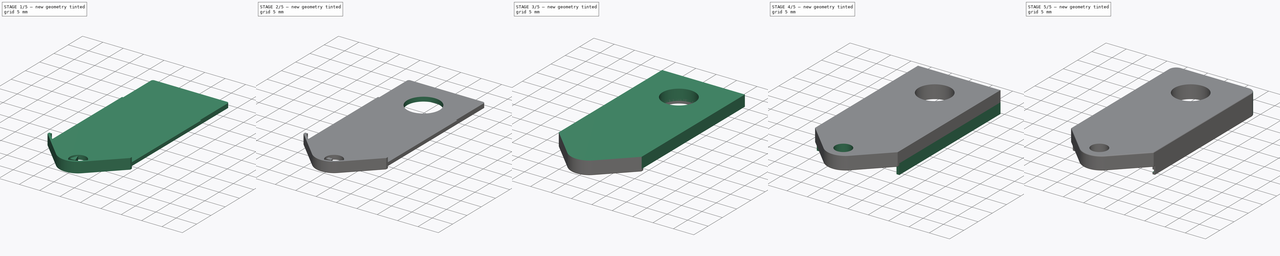
[diagram: build sequence overview — one tinted view per stage of 5, left to right]
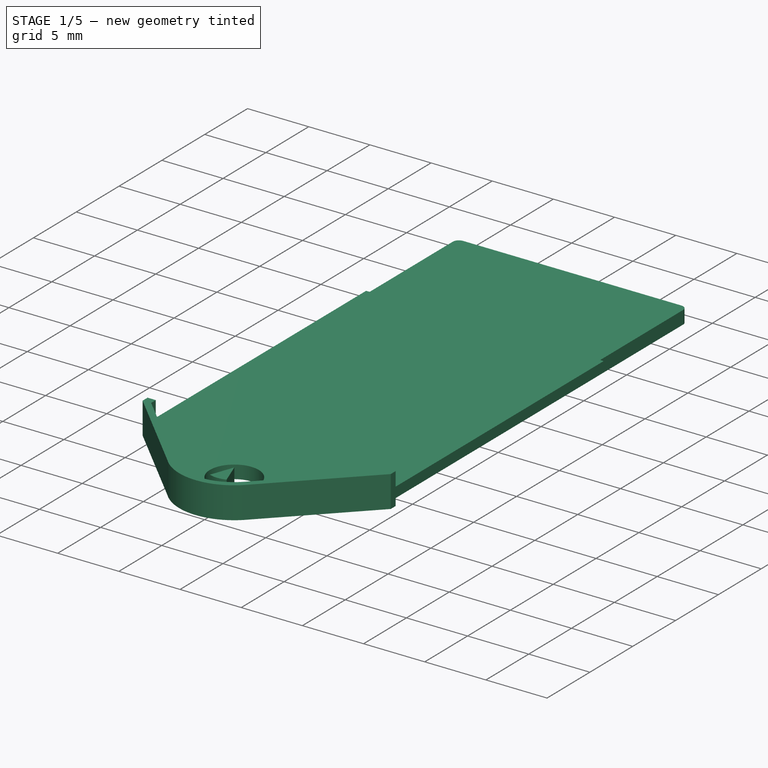
[diagram: stage 1 of 5 — iso view after this stage's code; geometry added in this stage tinted green]
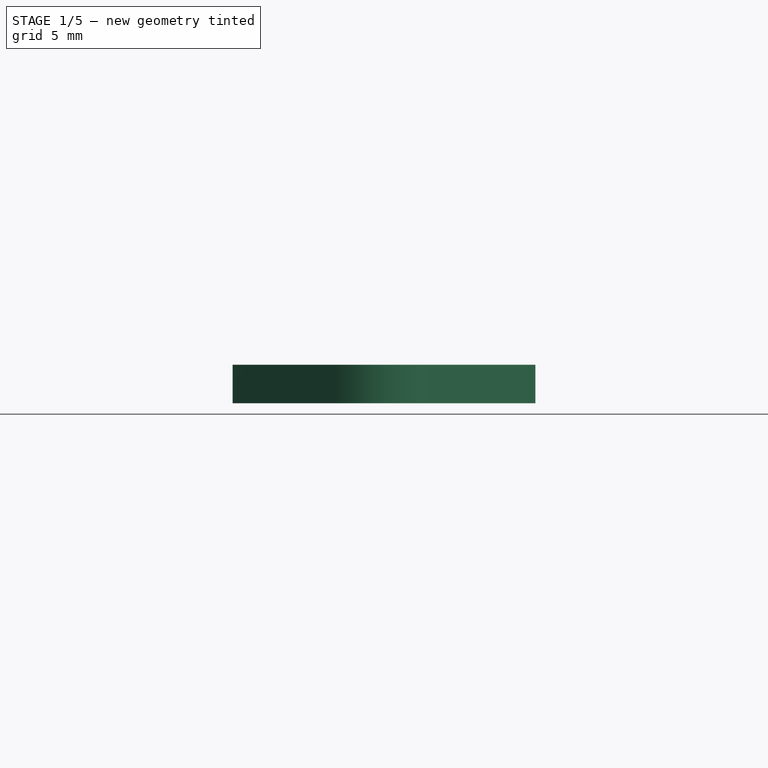
[diagram: stage 1 of 5 — front view after this stage's code; geometry added in this stage tinted green]
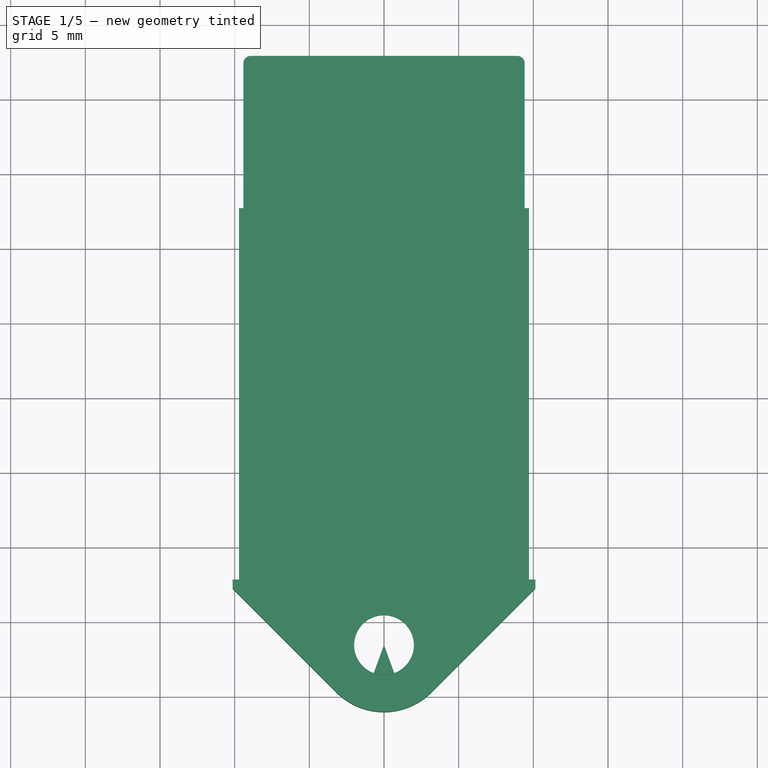
[diagram: stage 1 of 5 — top view after this stage's code; geometry added in this stage tinted green]
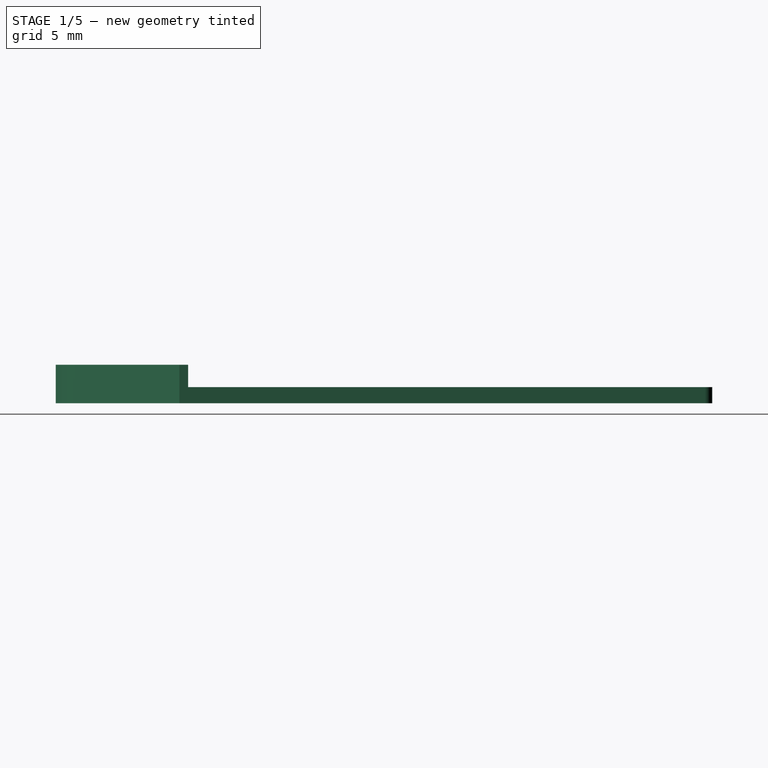
[diagram: stage 1 of 5 — right view after this stage's code; geometry added in this stage tinted green]
FCSTD DOCUMENT  (FreeCAD 0.19R24276 (Git))
Label: nfc_case
License: All rights reserved
LicenseURL: http://en.wikipedia.org/wiki/All_rights_reserved
objects: Sketcher::SketchObject×15, Part::Feature×14, App::Part×14, PartDesign::Pocket×10, PartDesign::Pad×5, PartDesign::Fillet×3, PartDesign::Body×2
note: 67 computed .brp shape members not serialized (recipe doc carries the construction recipe); baked Part::Feature solids carry a one-line shape summary decoded from their .brp

FEATURE [Sketcher::SketchObject] Sketch  label="bottom_base_sketch"
  FullyConstrained = true
  MapMode = 5
  Support = -> [XY_Plane]
  sketch-geometry (13):
    g0: LineSegment StartX=9.42 StartY=17.43 StartZ=0 EndX=9.42 EndY=-17.17 EndZ=0
    g1: LineSegment StartX=-9.42 StartY=-17.17 StartZ=0 EndX=-9.42 EndY=17.43 EndZ=0
    g2: LineSegment StartX=-9.42 StartY=-17.17 StartZ=0 EndX=-10.14 EndY=-17.17 EndZ=0
    g3: LineSegment StartX=-10.14 StartY=-17.17 StartZ=0 EndX=-10.14 EndY=-17.75 EndZ=0
    g4: LineSegment StartX=-10.14 StartY=-17.75 StartZ=0 EndX=-3.32 EndY=-24.57 EndZ=0
    g5: LineSegment StartX=3.32 StartY=-24.57 StartZ=0 EndX=10.14 EndY=-17.75 EndZ=0
    g6: LineSegment StartX=10.14 StartY=-17.75 StartZ=0 EndX=10.14 EndY=-17.17 EndZ=0
    g7: LineSegment StartX=10.14 StartY=-17.17 StartZ=0 EndX=9.42 EndY=-17.17 EndZ=0
    g8: LineSegment StartX=-8.92 StartY=17.93 StartZ=0 EndX=8.92 EndY=17.93 EndZ=0
    g9: ArcOfCircle CenterX=-8.92 CenterY=17.43 CenterZ=0 NormalX=0 NormalY=0 NormalZ=1 AngleXU=0 Radius=0.5 StartAngle=1.5708 EndAngle=3.14159
    g10: ArcOfCircle CenterX=8.92 CenterY=17.43 CenterZ=0 NormalX=0 NormalY=0 NormalZ=1 AngleXU=0 Radius=0.5 StartAngle=0 EndAngle=1.5708
    g11: Circle CenterX=0 CenterY=-21.525 CenterZ=0 NormalX=0 NormalY=0 NormalZ=1 AngleXU=0 Radius=2
    g12: ArcOfCircle CenterX=0 CenterY=-21.525 CenterZ=0 NormalX=0 NormalY=0 NormalZ=1 AngleXU=0 Radius=4.50493 StartAngle=3.88381 EndAngle=5.54097
  constraints (42):
    c: Vertical(g0)
    c: Vertical(g1)
    c: Coincident(g1,g2)
    c: Horizontal(g2)
    c: Coincident(g2,g3)
    c: Vertical(g3)
    c: Coincident(g3,g4)
    c: Coincident(g5,g6)
    c: Vertical(g6)
    c: Coincident(g6,g7)
    c: Coincident(g7,g0)
    c: Horizontal(g7)
    c: Horizontal(g8)
    c: Coincident(g9,g1)
    c: Coincident(g10,g8)
    c: Angle(g4,g3) = 2.35619
    c: Angle(g6,g5) = 2.35619
    c: Coincident(g8,g9)
    c: Distance(g7) = 0.72
    c: Distance(g2) = 0.72
    c: Horizontal(g4,g5)
    c: Coincident(g10,g0)
    c: Horizontal(g10,g0)
    c: Vertical(g10,g8)
    c: Radius(g10) = 0.5
    c: Radius(g9) = 0.5
    c: Vertical(g8,g9)
    c: Horizontal(g9,g1)
    c: Radius(g11) = 2
    c: Distance(g6) = 0.58
    c: Distance(g3) = 0.58
    c: DistanceX(g1,g0) = 18.84
    c: DistanceY(g0,g8) = 35.1
    c: Equal(g0,g1)
    c: DistanceY(g-1,g8) = 17.93
    c: DistanceY(g5,g-1) = 24.57
    c: PointOnObject(g12,g-2)
    c: Coincident(g12,g5)
    c: Coincident(g12,g4)
    c: DistanceY(g11,g-1) = 21.525
    c: DistanceY(g12,g-1) = 21.525
    c: Vertical(g11,g-1)
FEATURE [PartDesign::Pad] Pad  label="bottom_base"
  Direction = (1,1,1)
  Length = 1.98
  Length2 = 0.6
  Profile = -> Sketch
  Type = 4
FEATURE [Sketcher::SketchObject] Sketch020
  FullyConstrained = true
  MapMode = 5
  Placement = pos=(0,-17.15,0) rot=(1,0,0;1.5708rad)
  Support = -> [Pocket009]
  sketch-geometry (8):
    g0: LineSegment StartX=-9.45 StartY=-1.5 StartZ=0 EndX=-9.8 EndY=-1.5 EndZ=0
    g1: LineSegment StartX=-9.8 StartY=-1.5 StartZ=0 EndX=-9.8 EndY=-2.1 EndZ=0
    g2: LineSegment StartX=-9.8 StartY=-2.1 StartZ=0 EndX=-9.45 EndY=-2.1 EndZ=0
    g3: LineSegment StartX=-9.45 StartY=-2.1 StartZ=0 EndX=-9.45 EndY=-1.5 EndZ=0
    g4: LineSegment StartX=9.8 StartY=-1.5 StartZ=0 EndX=9.45 EndY=-1.5 EndZ=0
    g5: LineSegment StartX=9.45 StartY=-1.5 StartZ=0 EndX=9.45 EndY=-2.1 EndZ=0
    g6: LineSegment StartX=9.45 StartY=-2.1 StartZ=0 EndX=9.8 EndY=-2.1 EndZ=0
    g7: LineSegment StartX=9.8 StartY=-2.1 StartZ=0 EndX=9.8 EndY=-1.5 EndZ=0
  constraints (24):
    c: Coincident(g0,g1)
    c: Coincident(g1,g2)
    c: Coincident(g2,g3)
    c: Coincident(g3,g0)
    c: Horizontal(g0)
    c: Horizontal(g2)
    c: Vertical(g1)
    c: Vertical(g3)
    c: Distance(g2) = 0.35
    c: Distance(g3) = 0.6
    c: DistanceX(g0,g-1) = 9.45
    c: DistanceY(g0,g-1) = 1.5
    c: Coincident(g4,g5)
    c: Coincident(g5,g6)
    c: Coincident(g6,g7)
    c: Coincident(g7,g4)
    c: Horizontal(g4)
    c: Horizontal(g6)
    c: Vertical(g5)
    c: Vertical(g7)
    c: Equal(g2,g6) = 0.35
    c: Equal(g3,g7) = 0.3
    c: Horizontal(g5,g2)
    c: DistanceX(g-1,g4) = 9.45
FEATURE [Sketcher::SketchObject] Sketch021
  FullyConstrained = true
  MapMode = 5
  Placement = pos=(0,0,1.98) rot=(0,0,1;0rad)
  Support = -> [Pad]
  sketch-geometry (8):
    g0: LineSegment StartX=-9.47 StartY=17.3922 StartZ=0 EndX=-9.47 EndY=-17.7078 EndZ=0
    g1: LineSegment StartX=-9.47 StartY=-17.7078 StartZ=0 EndX=-2.72 EndY=-24.4578 EndZ=0
    g2: LineSegment StartX=2.72 StartY=-24.4578 StartZ=0 EndX=9.47 EndY=-17.7078 EndZ=0
    g3: LineSegment StartX=9.47 StartY=-17.7078 StartZ=0 EndX=9.47 EndY=17.3922 EndZ=0
    g4: LineSegment StartX=8.91215 StartY=17.95 StartZ=0 EndX=-8.91215 EndY=17.95 EndZ=0
    g5: ArcOfCircle CenterX=-8.91215 CenterY=17.3922 CenterZ=0 NormalX=0 NormalY=0 NormalZ=1 AngleXU=0 Radius=0.557848 StartAngle=1.5708 EndAngle=3.14159
    g6: ArcOfCircle CenterX=8.91215 CenterY=17.3922 CenterZ=0 NormalX=0 NormalY=0 NormalZ=1 AngleXU=0 Radius=0.557848 StartAngle=-9e-16 EndAngle=1.5708
    g7: ArcOfCircle CenterX=0 CenterY=-21.525 CenterZ=0 NormalX=0 NormalY=0 NormalZ=1 AngleXU=0 Radius=4 StartAngle=3.96463 EndAngle=5.46015
  constraints (27):
    c: Vertical(g0)
    c: Coincident(g1,g0)
    c: Coincident(g3,g2)
    c: Vertical(g3)
    c: Horizontal(g4)
    c: Coincident(g5,g4)
    c: Coincident(g5,g0)
    c: Coincident(g6,g3)
    c: Coincident(g6,g4)
    c: PointOnObject(g7,g-2)
    c: Coincident(g7,g2)
    c: Coincident(g7,g1)
    c: Horizontal(g2,g1)
    c: Angle(g3,g2) = 2.35619
    c: DistanceX(g0,g3) = 18.94
    c: Horizontal(g0,g5)
    c: Horizontal(g5,g6)
    c: Horizontal(g6,g3)
    c: Vertical(g4,g6)
    c: Vertical(g5,g4)
    c: Horizontal(g2,g0)
    c: DistanceY(g7,g-1) = 21.525
    c: Distance(g0) = 35.1
    c: DistanceY(g-1,g4) = 17.95
    c: DistanceX(g0,g-1) = 9.47
    c: Radius(g7) = 4
    c: DistanceX(g0,g1) = 6.75
FEATURE [PartDesign::Pocket] Pocket  label="pcb_space"
  BaseFeature = -> Pad
  Length = 1.5
  Length2 = 100
  Profile = -> Sketch021
  Type = 0
FEATURE [Sketcher::SketchObject] Sketch022
  FullyConstrained = true
  MapMode = 5
  Placement = pos=(0,-17.17,0) rot=(0,0.707107,0.707107;3.14159rad)
  Support = -> [Pocket]
  sketch-geometry (8):
    g0: LineSegment StartX=-9.41 StartY=0.48 StartZ=0 EndX=-9.71 EndY=0.48 EndZ=0
    g1: LineSegment StartX=-9.71 StartY=0.48 StartZ=0 EndX=-9.71 EndY=-0.02 EndZ=0
    g2: LineSegment StartX=-9.71 StartY=-0.02 StartZ=0 EndX=-9.41 EndY=-0.02 EndZ=0
    g3: LineSegment StartX=-9.41 StartY=-0.02 StartZ=0 EndX=-9.41 EndY=0.48 EndZ=0
    g4: LineSegment StartX=9.71 StartY=0.48 StartZ=0 EndX=9.41 EndY=0.48 EndZ=0
    g5: LineSegment StartX=9.41 StartY=0.48 StartZ=0 EndX=9.41 EndY=-0.02 EndZ=0
    g6: LineSegment StartX=9.41 StartY=-0.02 StartZ=0 EndX=9.71 EndY=-0.02 EndZ=0
    g7: LineSegment StartX=9.71 StartY=-0.02 StartZ=0 EndX=9.71 EndY=0.48 EndZ=0
  constraints (24):
    c: Coincident(g0,g1)
    c: Coincident(g1,g2)
    c: Coincident(g2,g3)
    c: Coincident(g3,g0)
    c: Horizontal(g0)
    c: Horizontal(g2)
    c: Vertical(g1)
    c: Vertical(g3)
    c: Distance(g2) = 0.3
    c: Distance(g1) = 0.5
    c: DistanceX(g0,g-1) = 9.41
    c: DistanceY(g-1,g0) = 0.48
    c: Coincident(g4,g5)
    c: Coincident(g5,g6)
    c: Coincident(g6,g7)
    c: Coincident(g7,g4)
    c: Horizontal(g4)
    c: Horizontal(g6)
    c: Vertical(g5)
    c: Vertical(g7)
    c: Equal(g2,g6) = 0.3
    c: Equal(g1,g5) = 0.3
    c: Horizontal(g4,g0)
    c: DistanceX(g-1,g4) = 9.41
FEATURE [PartDesign::Pad] Pad009  label="insert_line"
  BaseFeature = -> Pocket
  Direction = (1,1,1)
  Length = 24.9
  Length2 = 100
  Profile = -> Sketch022
  Type = 0
FEATURE [Sketcher::SketchObject] Sketch023  label="keyhole_holder"
  FullyConstrained = true
  MapMode = 5
  Support = -> [XY_Plane]
  sketch-geometry (3):
    g0: LineSegment StartX=0 StartY=-21.525 StartZ=0 EndX=-0.68404 EndY=-23.4044 EndZ=0
    g1: LineSegment StartX=0 StartY=-21.525 StartZ=0 EndX=0.68404 EndY=-23.4044 EndZ=0
    g2: ArcOfCircle CenterX=0 CenterY=-21.525 CenterZ=0 NormalX=0 NormalY=0 NormalZ=1 AngleXU=0 Radius=2 StartAngle=4.36332 EndAngle=5.06145
  constraints (9):
    c: Coincident(g2,g0)
    c: Coincident(g2,g1)
    c: Angle(g1,g-2) = 2.79253
    c: Angle(g-2,g0) = 2.79253
    c: Radius(g2) = 2
    c: DistanceY(g0,g-1) = 21.525
    c: Coincident(g1,g2)
    c: Coincident(g1,g0)
    c: Vertical(g0,g-1)
FEATURE [PartDesign::Pad] Pad010  label="keyhole_hook"
  BaseFeature = -> Pad009
  Direction = (1,1,1)
  Length = 1.2
  Length2 = 0.3
  Profile = -> Sketch023
  Type = 4
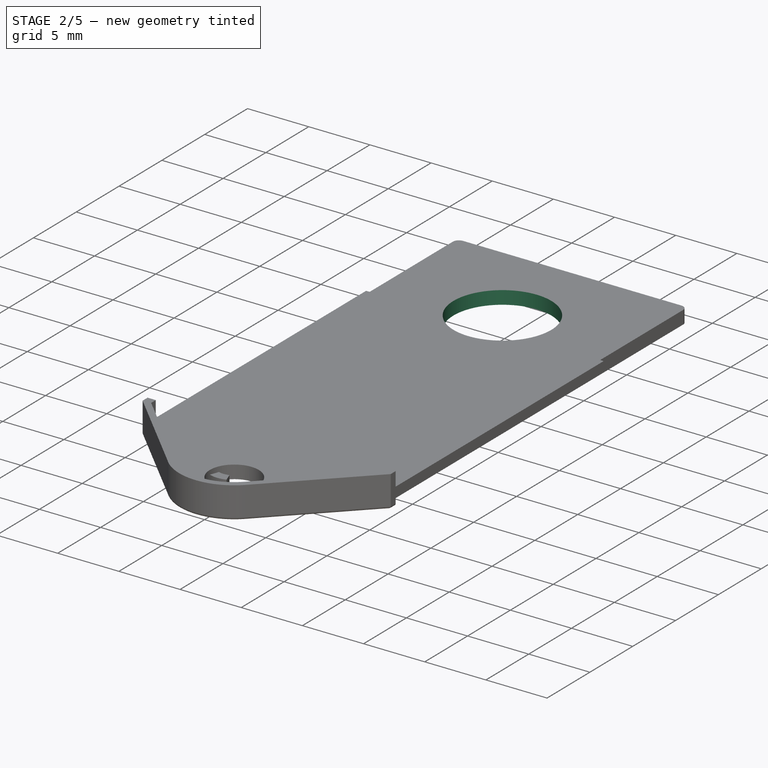
[diagram: stage 2 of 5 — iso view after this stage's code; geometry added in this stage tinted green]
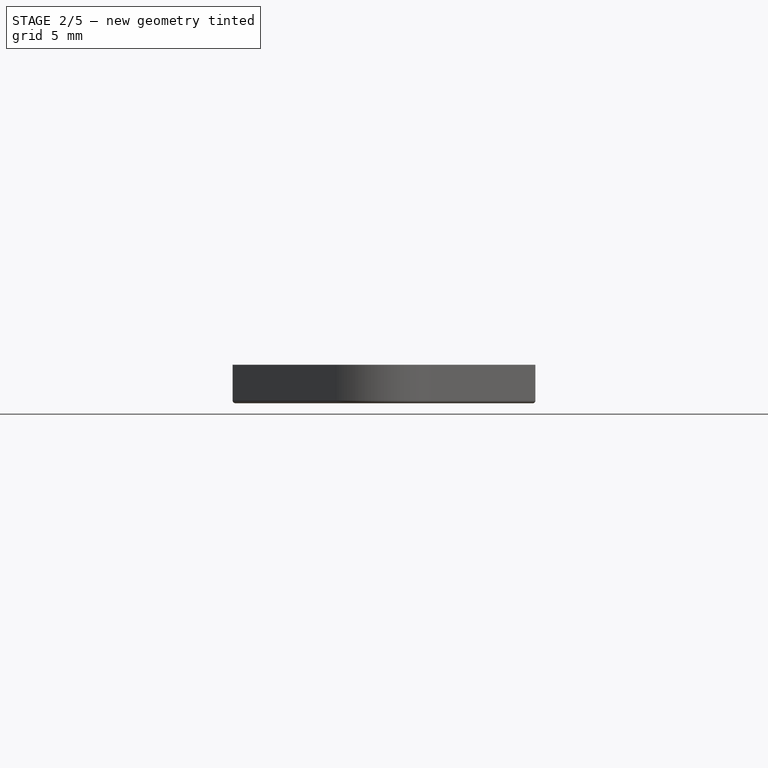
[diagram: stage 2 of 5 — front view after this stage's code; geometry added in this stage tinted green]
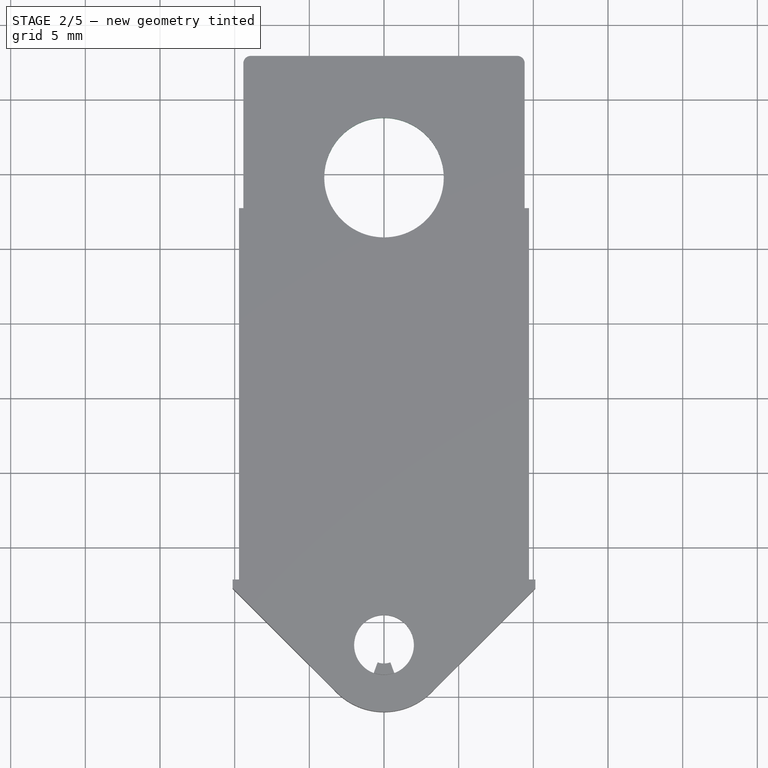
[diagram: stage 2 of 5 — top view after this stage's code; geometry added in this stage tinted green]
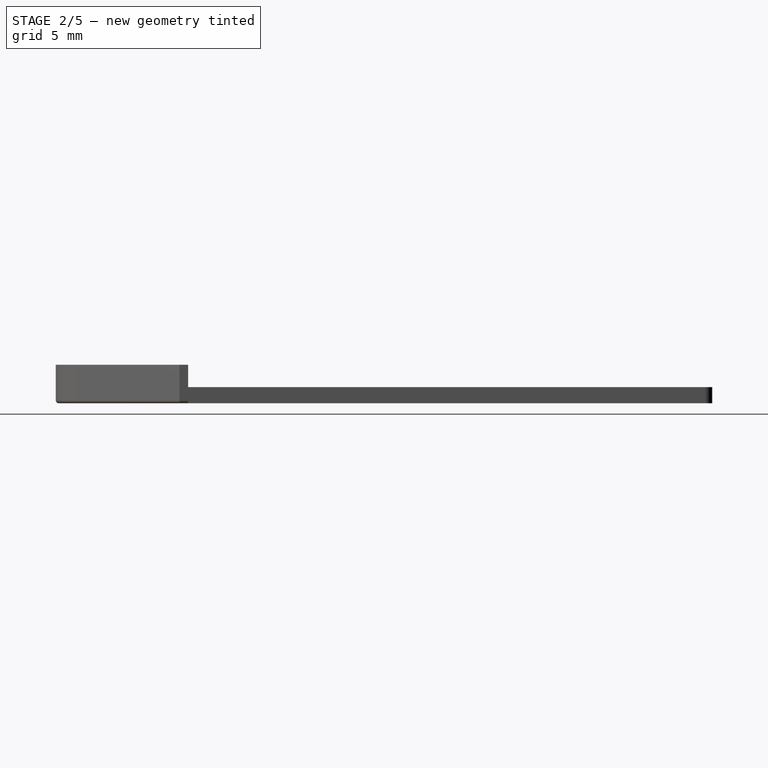
[diagram: stage 2 of 5 — right view after this stage's code; geometry added in this stage tinted green]
FEATURE [Sketcher::SketchObject] Sketch024
  FullyConstrained = true
  MapMode = 5
  Support = -> [XY_Plane]
  sketch-geometry (1):
    g0: Circle CenterX=0 CenterY=-21.525 CenterZ=0 NormalX=0 NormalY=0 NormalZ=1 AngleXU=0 Radius=1.25
  constraints (3):
    c: PointOnObject(g0,g-2)
    c: Radius(g0) = 1.25
    c: DistanceY(g0,g-1) = 21.525
FEATURE [PartDesign::Pocket] Pocket011  label="keyhole_hook_pocket"
  BaseFeature = -> Pad010
  Length = 5
  Length2 = 100
  Profile = -> Sketch024
  Type = 4
FEATURE [Sketcher::SketchObject] Sketch025
  FullyConstrained = true
  MapMode = 5
  Support = -> [XY_Plane]
  sketch-geometry (1):
    g0: Circle CenterX=0 CenterY=9.775 CenterZ=0 NormalX=0 NormalY=0 NormalZ=1 AngleXU=0 Radius=4
  constraints (3):
    c: PointOnObject(g0,g-2)
    c: Radius(g0) = 4
    c: DistanceY(g-1,g0) = 9.775
FEATURE [PartDesign::Pocket] Pocket012  label="air_hole_bottom"
  BaseFeature = -> Pocket011
  Length = 5
  Length2 = 100
  Profile = -> Sketch025
  Type = 4
FEATURE [PartDesign::Body] Body001  label="top_case"
  Group = -> [Sketch005,Pad003,Sketch007,Sketch008,Sketch016,Pocket005,Pocket006,Pocket007,Sketch017,Pad008,Sketch018,Pocket008,Sketch019,Pocket009,Sketch020,Pocket010,Fillet,Fillet002]
  Origin = -> Origin019
  Tip = -> Fillet002
FEATURE [PartDesign::Fillet] Fillet003
  Base = -> Pocket012 [Edge10,Edge12,Edge14,Edge16,Edge17]
  BaseFeature = -> Pocket012
  Radius = 0.2
  SupportTransform = false
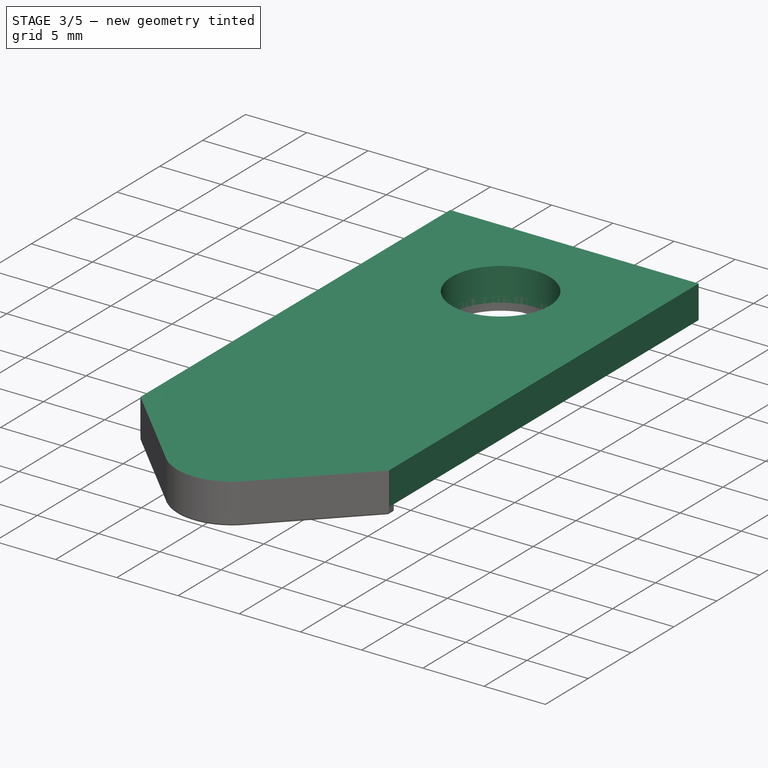
[diagram: stage 3 of 5 — iso view after this stage's code; geometry added in this stage tinted green]
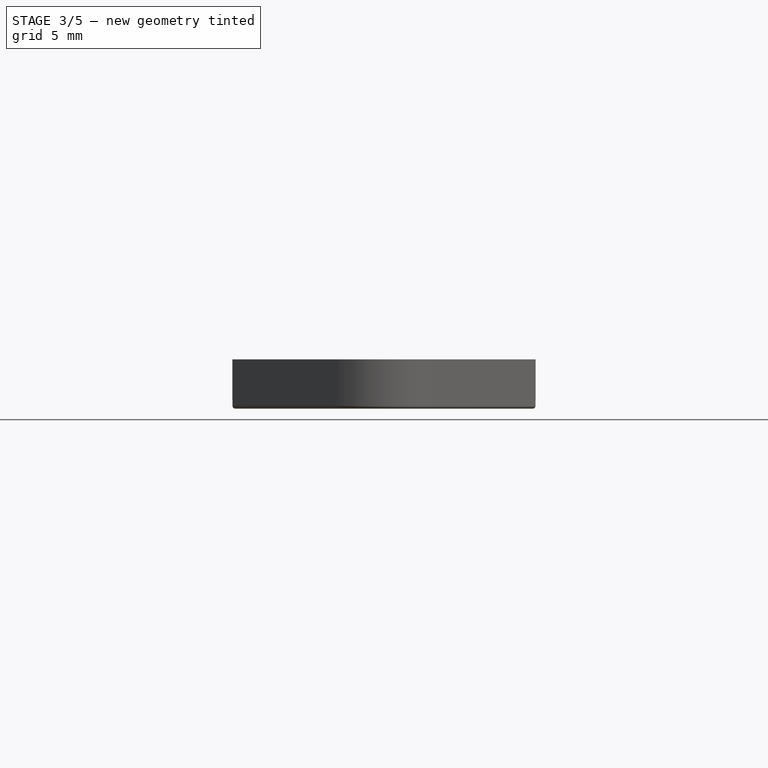
[diagram: stage 3 of 5 — front view after this stage's code; geometry added in this stage tinted green]
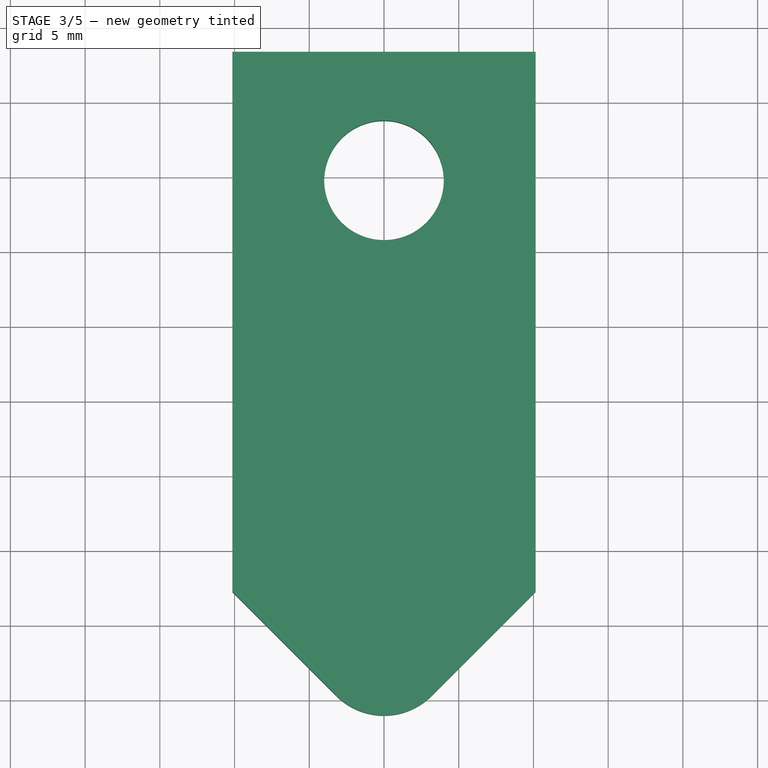
[diagram: stage 3 of 5 — top view after this stage's code; geometry added in this stage tinted green]
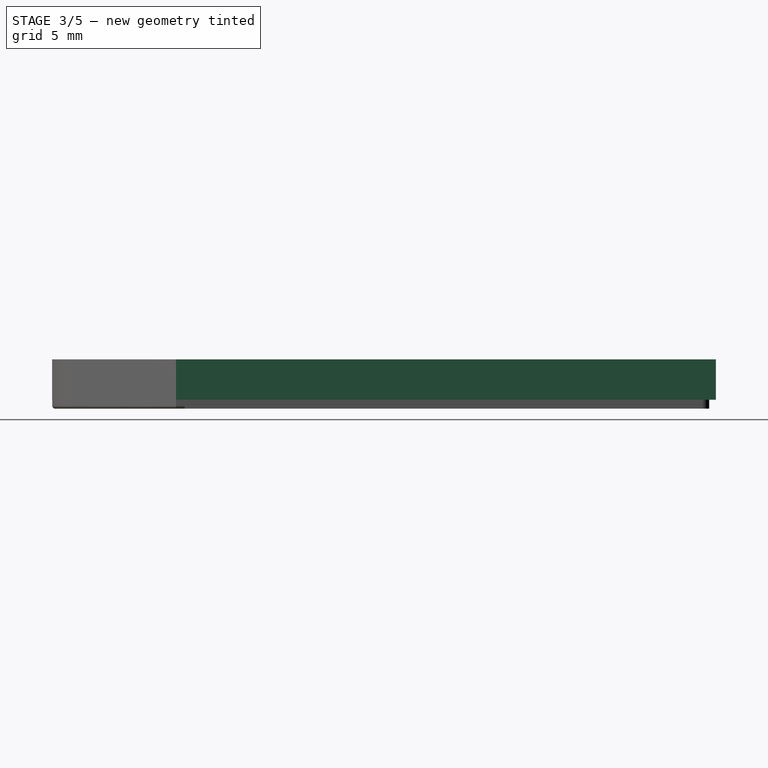
[diagram: stage 3 of 5 — right view after this stage's code; geometry added in this stage tinted green]
FEATURE [Sketcher::SketchObject] Sketch005  label="top_base_sketch"
  FullyConstrained = true
  MapMode = 5
  Support = -> [XY_Plane019]
  sketch-geometry (6):
    g0: LineSegment StartX=-10.15 StartY=18.375 StartZ=0 EndX=10.15 EndY=18.375 EndZ=0
    g1: LineSegment StartX=10.15 StartY=18.375 StartZ=0 EndX=10.15 EndY=-17.75 EndZ=0
    g2: LineSegment StartX=-10.15 StartY=-17.75 StartZ=0 EndX=-10.15 EndY=18.375 EndZ=0
    g3: ArcOfCircle CenterX=0 CenterY=-21.525 CenterZ=0 NormalX=0 NormalY=0 NormalZ=1 AngleXU=0 Radius=4.51231 StartAngle=3.88231 EndAngle=5.54246
    g4: LineSegment StartX=-10.15 StartY=-17.75 StartZ=0 EndX=-3.33 EndY=-24.57 EndZ=0
    g5: LineSegment StartX=3.33 StartY=-24.57 StartZ=0 EndX=10.15 EndY=-17.75 EndZ=0
  constraints (19):
    c: Coincident(g0,g1)
    c: Coincident(g2,g0)
    c: Horizontal(g0)
    c: Vertical(g1)
    c: Vertical(g2)
    c: Distance(g1) = 36.125
    c: DistanceX(g2,g-1) = 10.15
    c: DistanceY(g1,g-1) = 17.75
    c: PointOnObject(g3,g-2)
    c: DistanceY(g3,g-1) = 21.525
    c: Horizontal(g3,g3)
    c: DistanceX(g2,g1) = 20.3
    c: Horizontal(g2,g1)
    c: Coincident(g4,g2)
    c: Coincident(g4,g3)
    c: Coincident(g5,g3)
    c: Coincident(g5,g1)
    c: Angle(g1,g5) = 2.35619
    c: DistanceY(g3,g-1) = 24.57
FEATURE [PartDesign::Pad] Pad003  label="base_block"
  Direction = (1,1,1)
  Length = 2.7
  Length2 = 100
  Profile = -> Sketch005
  Type = 0
FEATURE [Sketcher::SketchObject] Sketch008  label="12_06_sketch"
  FullyConstrained = false
  MapMode = 5
  Support = -> [XY_Plane019]
  sketch-geometry (4):
    g0: LineSegment StartX=-4.71856 StartY=-7.36307 StartZ=0 EndX=0.670417 EndY=-7.36307 EndZ=0
    g1: LineSegment StartX=0.670417 StartY=-7.36307 StartZ=0 EndX=0.670417 EndY=-10.4321 EndZ=0
    g2: LineSegment StartX=0.670417 StartY=-10.4321 StartZ=0 EndX=-4.71856 EndY=-10.4321 EndZ=0
    g3: LineSegment StartX=-4.71856 StartY=-10.4321 StartZ=0 EndX=-4.71856 EndY=-7.36307 EndZ=0
  constraints (8):
    c: Coincident(g0,g1)
    c: Coincident(g1,g2)
    c: Coincident(g2,g3)
    c: Coincident(g3,g0)
    c: Horizontal(g0)
    c: Horizontal(g2)
    c: Vertical(g1)
    c: Vertical(g3)
FEATURE [Part::Feature] Part__Feature  label="SOLID"
  shape: bbox 1.6 x 0.8 x 0.8 mm, 28 faces (baked)
FEATURE [App::Part] C_0603_1608Metric
  Group = -> [Part__Feature]
  Origin = -> Origin022
  Placement = pos=(2.5,0.923832,1.65) rot=(0,0,1;0rad)
FEATURE [Part::Feature] Part__Feature001  label="SOLID001"
  shape: bbox 3.2 x 1.6 x 1.6 mm, 28 faces (baked)
FEATURE [App::Part] C_1206_3216Metric
  Group = -> [Part__Feature001]
  Origin = -> Origin023
  Placement = pos=(-2,-5.12617,1.65) rot=(0,0,1;0rad)
FEATURE [Part::Feature] Part__Feature002  label="SOLID002"
  shape: bbox 1.6 x 0.8 x 0.8 mm, 28 faces (baked)
FEATURE [App::Part] C_0603_1608Metric001
  Group = -> [Part__Feature002]
  Origin = -> Origin024
  Placement = pos=(-2,-2.32617,1.65) rot=(0,0,1;1.5708rad)
FEATURE [Part::Feature] Part__Feature003  label="SOLID003"
  shape: bbox 1.6 x 0.8 x 0.8 mm, 28 faces (baked)
FEATURE [App::Part] C_0603_1608Metric002
  Group = -> [Part__Feature003]
  Origin = -> Origin025
  Placement = pos=(-0.399999,-2.32617,1.65) rot=(0,0,1;1.5708rad)
FEATURE [Part::Feature] Part__Feature004  label="SOLID004"
  shape: bbox 3 x 3 x 0.6 mm, 109 faces (baked)
FEATURE [App::Part] QFN_16_1EP_3x3mm_P0_5mm_EP2_7x2_7mm_ThermalVias  label="QFN-16-1EP_3x3mm_P0.5mm_EP2.7x2.7mm_ThermalVias"
  Group = -> [Part__Feature004]
  Origin = -> Origin026
  Placement = pos=(3,-3.28796,1.65) rot=(0,0,1;1.5708rad)
FEATURE [Part::Feature] Part__Feature005  label="SOLID005"
  shape: bbox 3 x 3 x 0.6 mm, 134 faces (baked)
FEATURE [App::Part] QFN_20_1EP_3x3mm_P0_45mm_EP1_6x1_6mm  label="QFN-20-1EP_3x3mm_P0.45mm_EP1.6x1.6mm"
  Group = -> [Part__Feature005]
  Origin = -> Origin027
  Placement = pos=(-2.15,3.07383,1.65) rot=(0,0,1;0rad)
FEATURE [Part::Feature] Part__Feature006  label="SOLID006"
  shape: bbox 1.6 x 0.8 x 0.8 mm, 28 faces (baked)
FEATURE [App::Part] C_0603_1608Metric003
  Group = -> [Part__Feature006]
  Origin = -> Origin028
  Placement = pos=(-3.6,-2.32617,1.65) rot=(0,0,1;1.5708rad)
FEATURE [Part::Feature] Part__Feature007  label="SOLID007"
  shape: bbox 1.6 x 0.87 x 0.66 mm, 39 faces (baked)
FEATURE [App::Part] D_0603_1608Metric
  Group = -> [Part__Feature007]
  Origin = -> Origin029
  Placement = pos=(0.750001,-8.17617,1.65) rot=(0,0,-1;1.5708rad)
FEATURE [Part::Feature] Part__Feature008  label="SOLID008"
  shape: bbox 1.6 x 0.8 x 0.45 mm, 26 faces (baked)
FEATURE [App::Part] R_0603_1608Metric
  Group = -> [Part__Feature008]
  Origin = -> Origin030
  Placement = pos=(2.5,4.87383,1.65) rot=(0,0,1;0rad)
FEATURE [Part::Feature] Part__Feature009  label="SOLID009"
  shape: bbox 1 x 0.5 x 0.5 mm, 28 faces (baked)
FEATURE [App::Part] C_0402_1005Metric
  Group = -> [Part__Feature009]
  Origin = -> Origin031
  Placement = pos=(1e-06,12.9738,1.65) rot=(0,0,1;3.14159rad)
FEATURE [Part::Feature] Part__Feature010  label="SOLID010"
  shape: bbox 1 x 0.5 x 0.5 mm, 28 faces (baked)
FEATURE [App::Part] C_0402_1005Metric001
  Group = -> [Part__Feature010]
  Origin = -> Origin032
  Placement = pos=(2.5,-6.62617,1.65) rot=(0,0,1;3.14159rad)
FEATURE [Part::Feature] Part__Feature011  label="SOLID011"
  shape: bbox 1.6 x 0.8 x 0.45 mm, 26 faces (baked)
FEATURE [App::Part] R_0603_1608Metric001
  Group = -> [Part__Feature011]
  Origin = -> Origin033
  Placement = pos=(2.5,2.52383,1.65) rot=(0,0,1;0rad)
FEATURE [Part::Feature] Part__Feature012  label="SOLID012"
  shape: bbox 1.6 x 0.87 x 0.66 mm, 39 faces (baked)
FEATURE [App::Part] D_0603_1608Metric001
  Group = -> [Part__Feature012]
  Origin = -> Origin034
  Placement = pos=(-0.899999,-8.17617,1.65) rot=(0,0,-1;1.5708rad)
FEATURE [Part::Feature] Part__Feature013  label="nfc_sense PCB"
  shape: bbox 18.6 x 43.15 x 1.6 mm, 19 faces (baked)
FEATURE [App::Part] nfc_sense_1  label="nfc_sense 1"
  Group = -> [C_0603_1608Metric,C_1206_3216Metric,C_0603_1608Metric001,C_0603_1608Metric002,QFN_16_1EP_3x3mm_P0_5mm_EP2_7x2_7mm_ThermalVias,QFN_20_1EP_3x3mm_P0_45mm_EP1_6x1_6mm,C_0603_1608Metric003,D_0603_1608Metric,R_0603_1608Metric,C_0402_1005Metric,C_0402_1005Metric001,R_0603_1608Metric001,D_0603_1608Metric001,Part__Feature013]
  Origin = -> Origin035
  Placement = pos=(0,-3.7,-1.4) rot=(0,0,1;0rad)
FEATURE [Sketcher::SketchObject] Sketch016  label="air_cutout_sketch"
  FullyConstrained = true
  MapMode = 5
  Support = -> [XY_Plane019]
  sketch-geometry (1):
    g0: Circle CenterX=0 CenterY=9.775 CenterZ=0 NormalX=0 NormalY=0 NormalZ=1 AngleXU=0 Radius=4
  constraints (3):
    c: PointOnObject(g0,g-2)
    c: DistanceY(g-1,g0) = 9.775
    c: Radius(g0) = 4
FEATURE [PartDesign::Pocket] Pocket005  label="air_hole"
  BaseFeature = -> Pad003
  Length = 5
  Length2 = 100
  Profile = -> Sketch016
  Reversed = true
  Type = 0
FEATURE [Sketcher::SketchObject] Sketch007  label="parts_sketch"
  FullyConstrained = false
  MapMode = 5
  Placement = pos=(0,0,0) rot=(1,0,0;3.14159rad)
  Support = -> [Pocket005]
  sketch-geometry (4):
    g0: LineSegment StartX=-5.5 StartY=-3.72239 StartZ=0 EndX=5.5 EndY=-3.72239 EndZ=0
    g1: LineSegment StartX=5.5 StartY=-3.72239 StartZ=0 EndX=5.5 EndY=14.2776 EndZ=0
    g2: LineSegment StartX=5.5 StartY=14.2776 StartZ=0 EndX=-5.5 EndY=14.2776 EndZ=0
    g3: LineSegment StartX=-5.5 StartY=14.2776 StartZ=0 EndX=-5.5 EndY=-3.72239 EndZ=0
  constraints (11):
    c: Coincident(g0,g1)
    c: Coincident(g1,g2)
    c: Coincident(g2,g3)
    c: Coincident(g3,g0)
    c: Horizontal(g0)
    c: Horizontal(g2)
    c: Vertical(g1)
    c: Vertical(g3)
    c: Distance(g0) = 11
    c: Distance(g1) = 18
    c: DistanceX(g-1,g0) = 5.5
FEATURE [PartDesign::Pocket] Pocket006  label="parts_cut"
  BaseFeature = -> Pocket005
  Length = 2.2
  Length2 = 100
  Profile = -> Sketch007
  Type = 0
FEATURE [Sketcher::SketchObject] Sketch026
  FullyConstrained = true
  MapMode = 5
  Placement = pos=(0,0,0.48) rot=(0,0,1;0rad)
  Support = -> [Fillet003]
  sketch-geometry (4):
    g0: ArcOfCircle CenterX=0 CenterY=-21.525 CenterZ=0 NormalX=0 NormalY=0 NormalZ=1 AngleXU=0 Radius=4.25 StartAngle=4.35168 EndAngle=5.0731
    g1: LineSegment StartX=1.5 StartY=-25.5015 StartZ=0 EndX=1.5 EndY=-25.0015 EndZ=0
    g2: LineSegment StartX=1.5 StartY=-25.0015 StartZ=0 EndX=-1.5 EndY=-25.0015 EndZ=0
    g3: LineSegment StartX=-1.5 StartY=-25.0015 StartZ=0 EndX=-1.5 EndY=-25.5015 EndZ=0
  constraints (13):
    c: PointOnObject(g0,g-2)
    c: Radius(g0) = 4.25
    c: DistanceX(g0,g0) = 3
    c: DistanceX(g0,g0) = 1.5
    c: Coincident(g1,g0)
    c: Vertical(g1)
    c: Coincident(g1,g2)
    c: Horizontal(g2)
    c: Coincident(g2,g3)
    c: Coincident(g3,g0)
    c: Vertical(g3)
    c: Distance(g3) = 0.5
    c: DistanceY(g0,g-1) = 21.525
FEATURE [PartDesign::Pocket] Pocket013
  BaseFeature = -> Fillet003
  Length = 5
  Length2 = 100
  Profile = -> Sketch026
  Reversed = true
  Type = 0
FEATURE [PartDesign::Body] Body  label="bottom_case"
  Group = -> [Sketch,Pad,Sketch021,Pocket,Sketch022,Pad009,Sketch023,Pad010,Sketch024,Pocket011,Sketch025,Pocket012,Fillet003,Sketch026,Pocket013]
  Origin = -> Origin
  Placement = pos=(0,0,-2) rot=(0,0,1;0rad)
  Tip = -> Pocket013
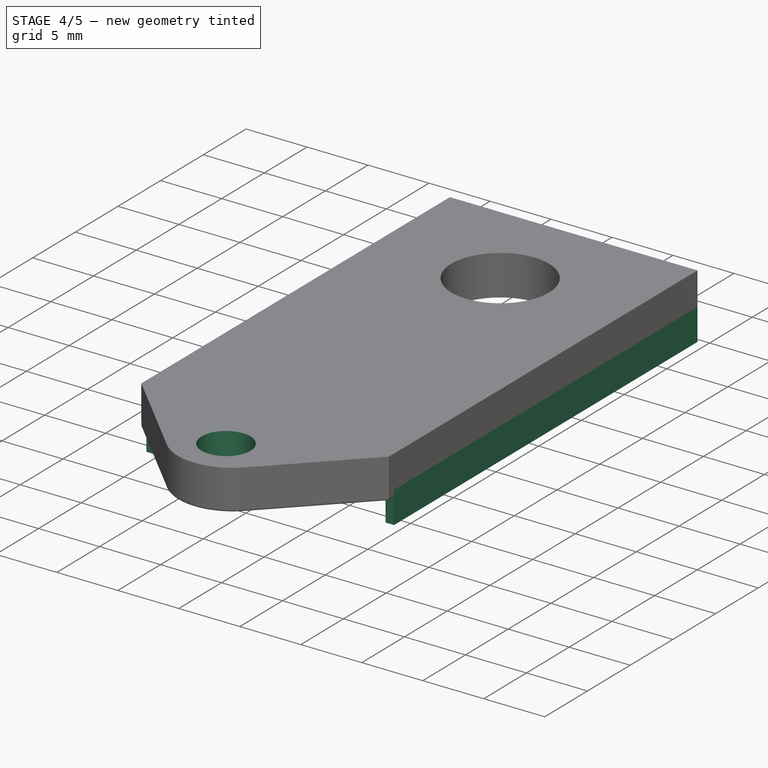
[diagram: stage 4 of 5 — iso view after this stage's code; geometry added in this stage tinted green]
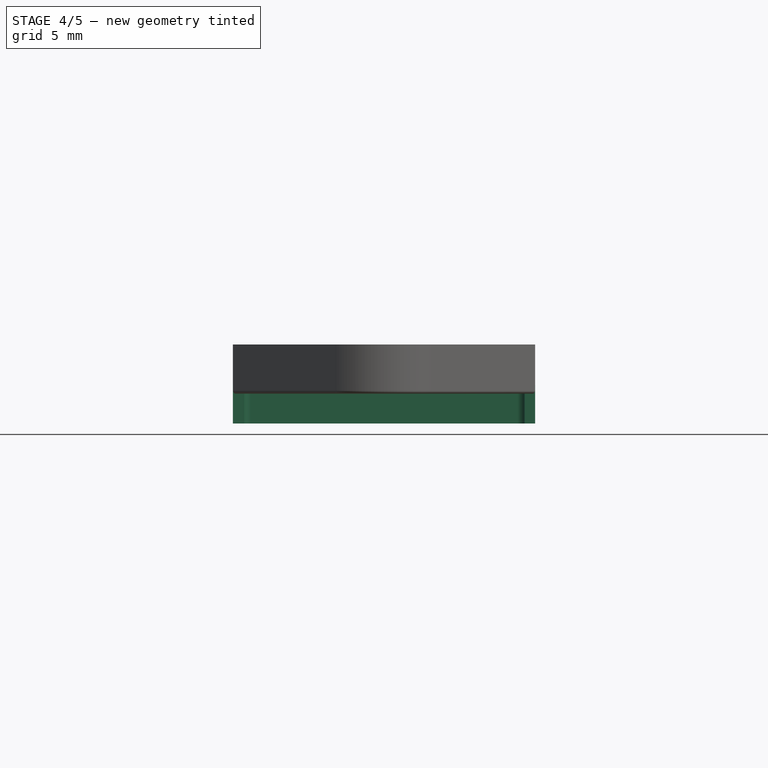
[diagram: stage 4 of 5 — front view after this stage's code; geometry added in this stage tinted green]
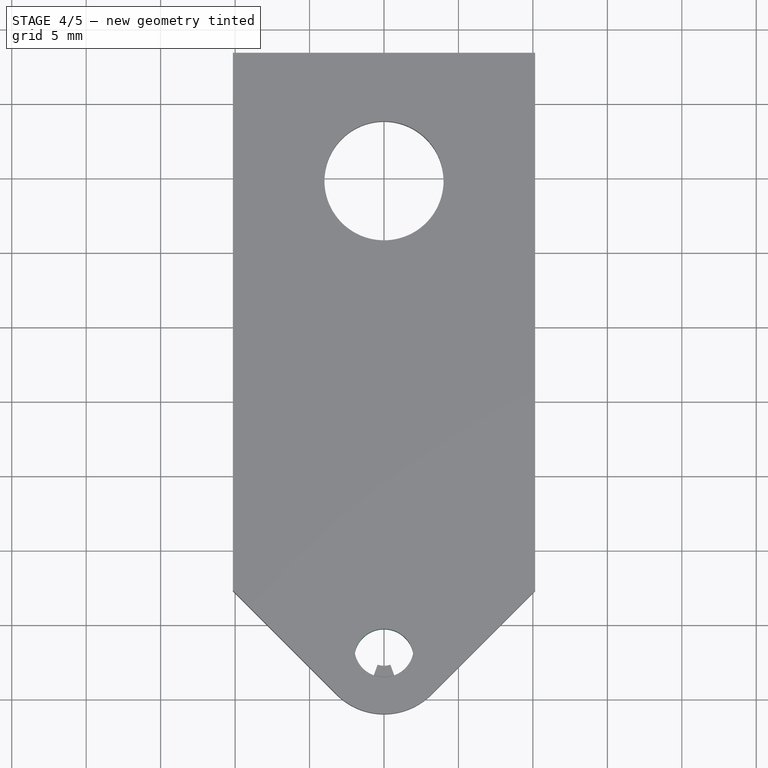
[diagram: stage 4 of 5 — top view after this stage's code; geometry added in this stage tinted green]
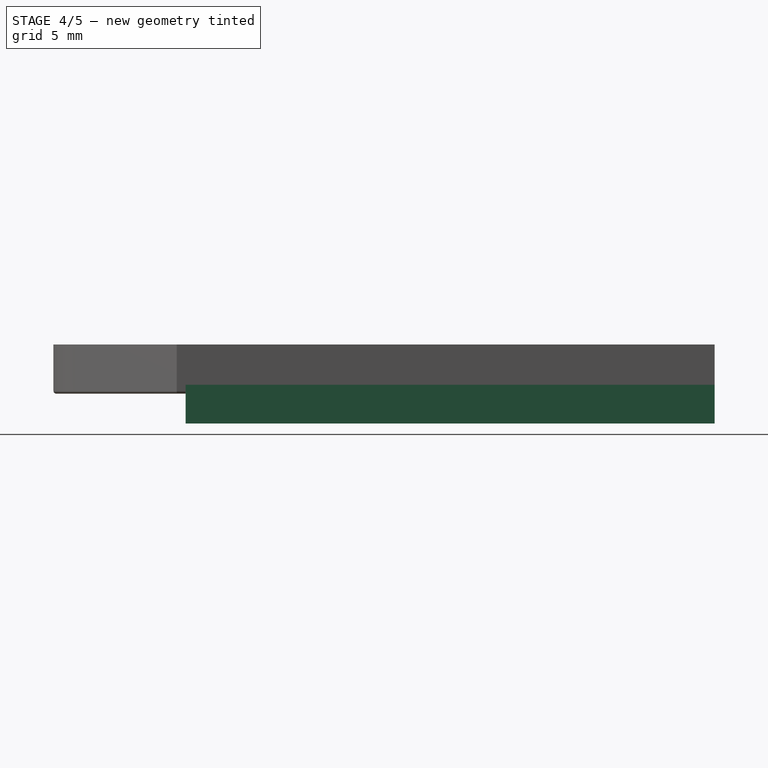
[diagram: stage 4 of 5 — right view after this stage's code; geometry added in this stage tinted green]
FEATURE [PartDesign::Pocket] Pocket007  label="12_06_cut"
  BaseFeature = -> Pocket006
  Length = 1
  Length2 = 100
  Profile = -> Sketch008
  Reversed = true
  Type = 0
FEATURE [Sketcher::SketchObject] Sketch017
  FullyConstrained = true
  MapMode = 5
  Support = -> [XY_Plane019]
  sketch-geometry (10):
    g0: LineSegment StartX=-8.95 StartY=17.975 StartZ=0 EndX=8.95 EndY=17.975 EndZ=0
    g1: LineSegment StartX=9.45 StartY=17.475 StartZ=0 EndX=9.45 EndY=-17.15 EndZ=0
    g2: LineSegment StartX=-9.45 StartY=-17.15 StartZ=0 EndX=-9.45 EndY=17.475 EndZ=0
    g3: LineSegment StartX=-9.45 StartY=-17.15 StartZ=0 EndX=-10.15 EndY=-17.15 EndZ=0
    g4: LineSegment StartX=-10.15 StartY=-17.15 StartZ=0 EndX=-10.15 EndY=18.375 EndZ=0
    g5: LineSegment StartX=-10.15 StartY=18.375 StartZ=0 EndX=10.15 EndY=18.375 EndZ=0
    g6: LineSegment StartX=10.15 StartY=18.375 StartZ=0 EndX=10.15 EndY=-17.15 EndZ=0
    g7: LineSegment StartX=10.15 StartY=-17.15 StartZ=0 EndX=9.45 EndY=-17.15 EndZ=0
    g8: ArcOfCircle CenterX=-8.95 CenterY=17.475 CenterZ=0 NormalX=0 NormalY=0 NormalZ=1 AngleXU=0 Radius=0.5 StartAngle=1.5708 EndAngle=3.14159
    g9: ArcOfCircle CenterX=8.95 CenterY=17.475 CenterZ=0 NormalX=0 NormalY=0 NormalZ=1 AngleXU=0 Radius=0.5 StartAngle=8e-16 EndAngle=1.5708
  constraints (32):
    c: Horizontal(g0)
    c: Vertical(g1)
    c: Vertical(g2)
    c: Coincident(g2,g3)
    c: Horizontal(g3)
    c: Coincident(g3,g4)
    c: Vertical(g4)
    c: Coincident(g4,g5)
    c: Horizontal(g5)
    c: Coincident(g5,g6)
    c: Vertical(g6)
    c: Coincident(g6,g7)
    c: Coincident(g7,g1)
    c: Horizontal(g7)
    c: Coincident(g8,g2)
    c: Coincident(g8,g0)
    c: Coincident(g9,g1)
    c: Coincident(g9,g0)
    c: Radius(g9) = 0.5
    c: Radius(g8) = 0.5
    c: Distance(g7) = 0.7
    c: Equal(g3,g7)
    c: DistanceY(g0,g4) = 0.4
    c: Horizontal(g9,g1)
    c: Vertical(g9,g0)
    c: Vertical(g8,g0)
    c: Horizontal(g8,g2)
    c: Distance(g4) = 35.525
    c: Equal(g4,g6)
    c: Distance(g5) = 20.3
    c: DistanceX(g4,g-1) = 10.15
    c: DistanceY(g-1,g4) = 18.375
FEATURE [PartDesign::Pad] Pad008  label="edge"
  BaseFeature = -> Pocket007
  Direction = (1,1,1)
  Length = 2.6
  Length2 = 100
  Profile = -> Sketch017
  Reversed = true
  Type = 0
FEATURE [Sketcher::SketchObject] Sketch018
  FullyConstrained = true
  MapMode = 5
  Support = -> [XY_Plane019]
  sketch-geometry (1):
    g0: Circle CenterX=0 CenterY=-22.325 CenterZ=0 NormalX=0 NormalY=0 NormalZ=1 AngleXU=0 Radius=2
  constraints (3):
    c: PointOnObject(g0,g-2)
    c: Radius(g0) = 2
    c: DistanceY(g0,g-1) = 22.325
FEATURE [PartDesign::Pocket] Pocket008  label="misty_keyhole"
  BaseFeature = -> Pad008
  Length = 5
  Length2 = 100
  Profile = -> Sketch018
  Reversed = true
  Type = 0
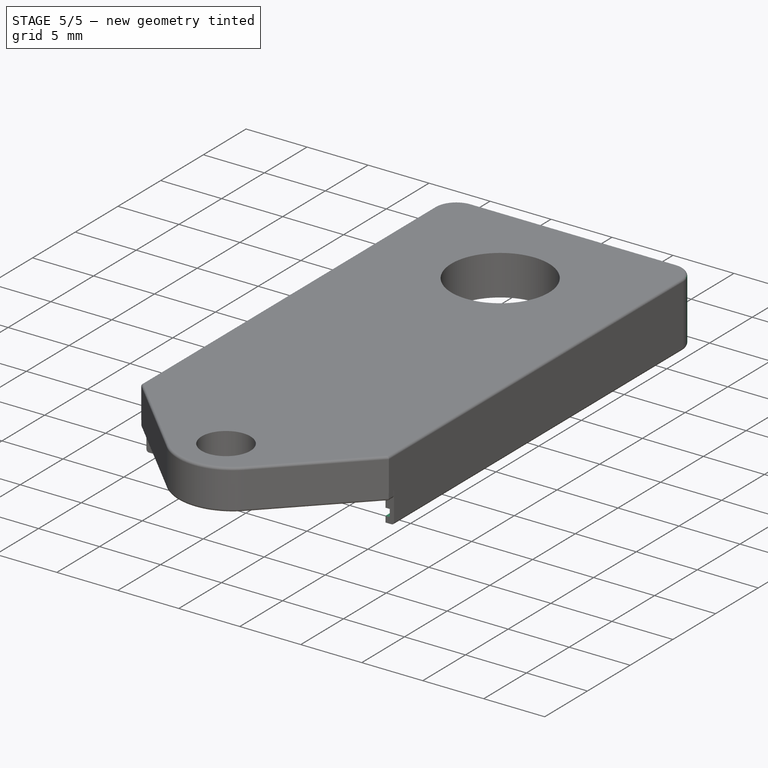
[diagram: stage 5 of 5 — iso view after this stage's code; geometry added in this stage tinted green]
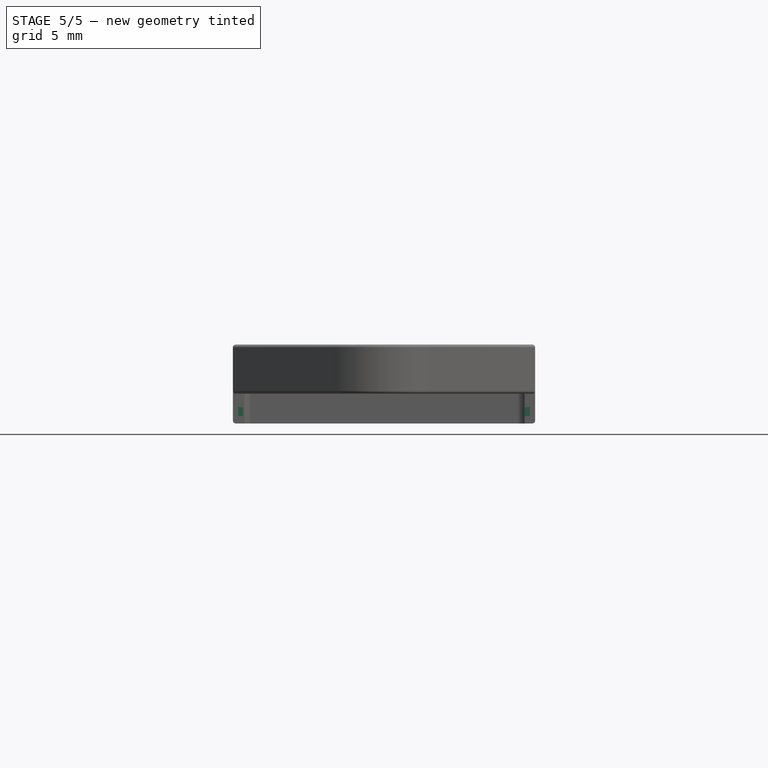
[diagram: stage 5 of 5 — front view after this stage's code; geometry added in this stage tinted green]
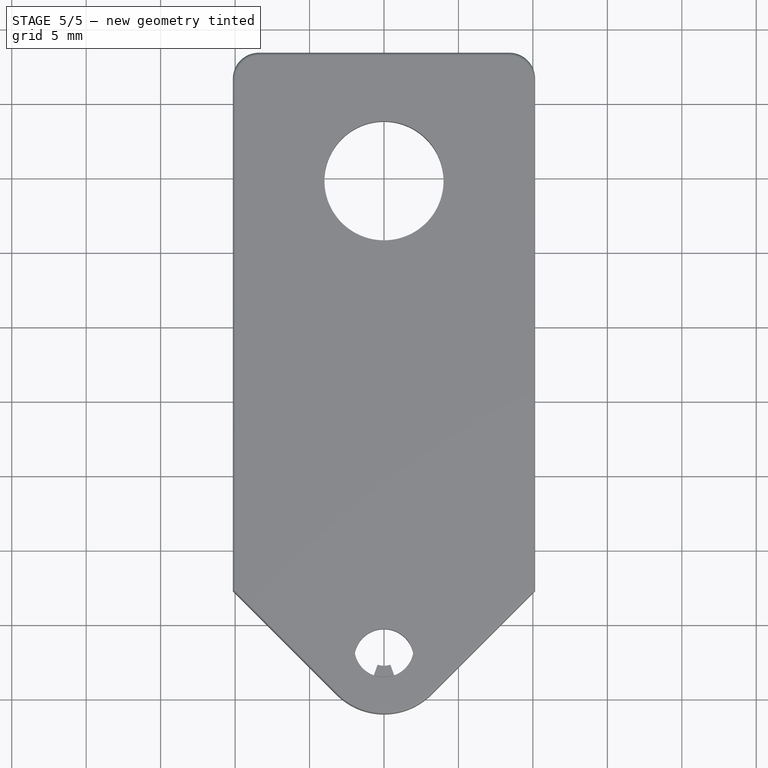
[diagram: stage 5 of 5 — top view after this stage's code; geometry added in this stage tinted green]
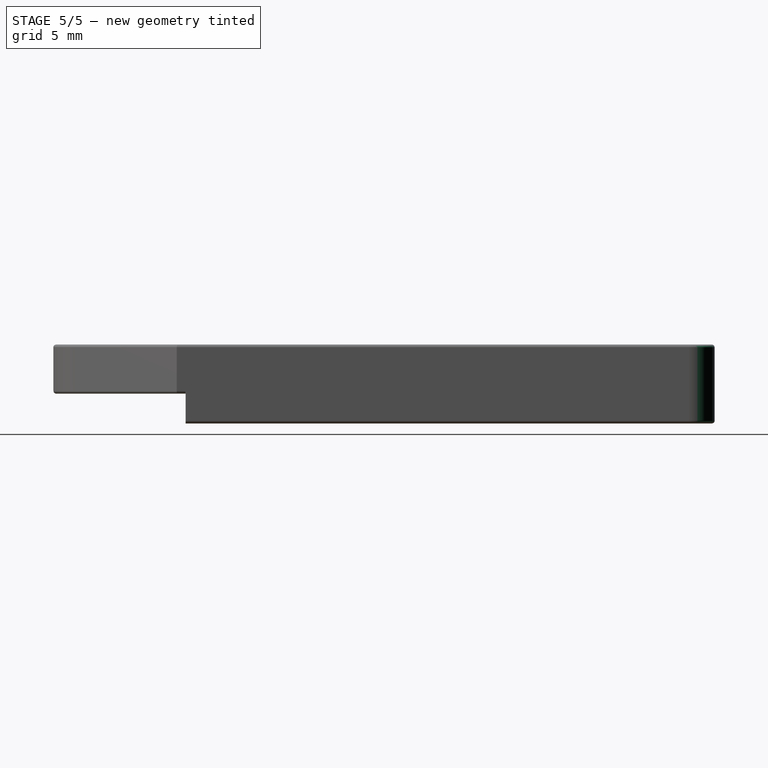
[diagram: stage 5 of 5 — right view after this stage's code; geometry added in this stage tinted green]
FEATURE [Sketcher::SketchObject] Sketch019
  FullyConstrained = true
  MapMode = 5
  Support = -> [XY_Plane019]
  sketch-geometry (8):
    g0: LineSegment StartX=-9.45 StartY=17.3737 StartZ=0 EndX=-9.45 EndY=-17.7263 EndZ=0
    g1: LineSegment StartX=-9.45 StartY=-17.7263 StartZ=0 EndX=-2.7 EndY=-24.4763 EndZ=0
    g2: LineSegment StartX=2.7 StartY=-24.4763 StartZ=0 EndX=9.45 EndY=-17.7263 EndZ=0
    g3: LineSegment StartX=9.45 StartY=-17.7263 StartZ=0 EndX=9.45 EndY=17.3737 EndZ=0
    g4: LineSegment StartX=8.87373 StartY=17.95 StartZ=0 EndX=-8.87373 EndY=17.95 EndZ=0
    g5: ArcOfCircle CenterX=-8.87373 CenterY=17.3737 CenterZ=0 NormalX=0 NormalY=0 NormalZ=1 AngleXU=0 Radius=0.576271 StartAngle=1.5708 EndAngle=3.14159
    g6: ArcOfCircle CenterX=8.87373 CenterY=17.3737 CenterZ=0 NormalX=0 NormalY=0 NormalZ=1 AngleXU=0 Radius=0.576271 StartAngle=-9e-16 EndAngle=1.5708
    g7: ArcOfCircle CenterX=0 CenterY=-21.525 CenterZ=0 NormalX=0 NormalY=0 NormalZ=1 AngleXU=0 Radius=4 StartAngle=3.97142 EndAngle=5.45335
  constraints (27):
    c: Vertical(g0)
    c: Coincident(g1,g0)
    c: Coincident(g3,g2)
    c: Vertical(g3)
    c: Horizontal(g4)
    c: Coincident(g5,g4)
    c: Coincident(g5,g0)
    c: Coincident(g6,g3)
    c: Coincident(g6,g4)
    c: PointOnObject(g7,g-2)
    c: Coincident(g7,g2)
    c: Coincident(g7,g1)
    c: Horizontal(g2,g1)
    c: Angle(g3,g2) = 2.35619
    c: DistanceX(g0,g3) = 18.9
    c: Horizontal(g0,g5)
    c: Horizontal(g5,g6)
    c: Horizontal(g6,g3)
    c: Vertical(g4,g6)
    c: Vertical(g5,g4)
    c: Horizontal(g2,g0)
    c: DistanceY(g7,g-1) = 21.525
    c: Distance(g0) = 35.1
    c: DistanceY(g-1,g4) = 17.95
    c: DistanceX(g0,g-1) = 9.45
    c: Radius(g7) = 4
    c: DistanceX(g0,g1) = 6.75
FEATURE [PartDesign::Pocket] Pocket009  label="ridge"
  BaseFeature = -> Pocket008
  Length = 0.2
  Length2 = 100
  Profile = -> Sketch019
  Reversed = true
  Type = 0
FEATURE [PartDesign::Pocket] Pocket010  label="bottom_slots"
  BaseFeature = -> Pocket009
  Length = 25
  Length2 = 100
  Profile = -> Sketch020
  Type = 0
FEATURE [PartDesign::Fillet] Fillet
  Base = -> Pocket010 [Edge29,Edge5,Edge26,Edge63]
  BaseFeature = -> Pocket010
  Radius = 1.75
  SupportTransform = false
FEATURE [PartDesign::Fillet] Fillet002
  Base = -> Fillet [Edge24,Edge43,Edge27,Edge23,Edge25,Edge28,Edge4,Edge9,Edge26]
  BaseFeature = -> Fillet
  Radius = 0.2
  SupportTransform = false
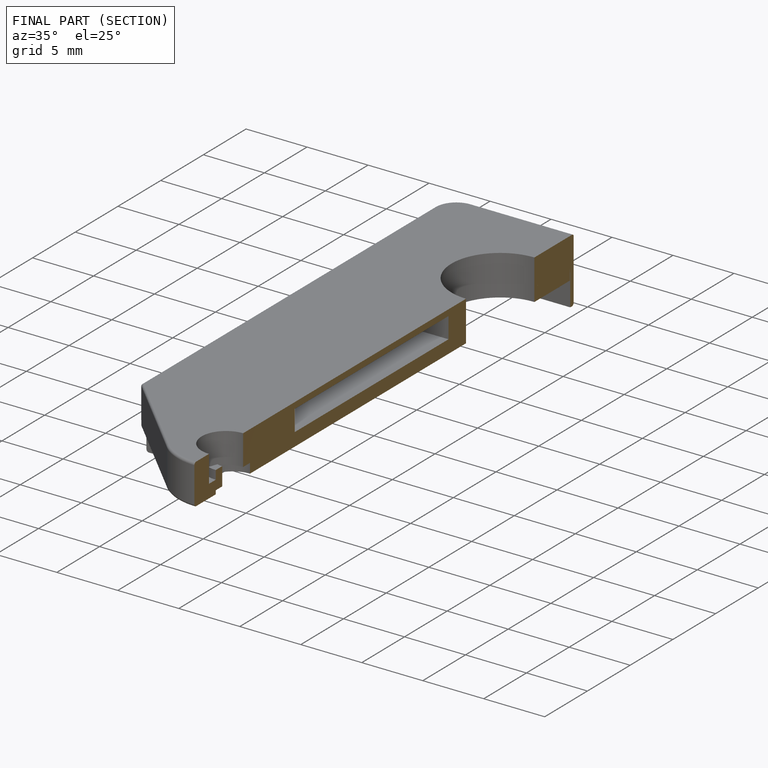
[diagram: finished part — half-section view (interior)]
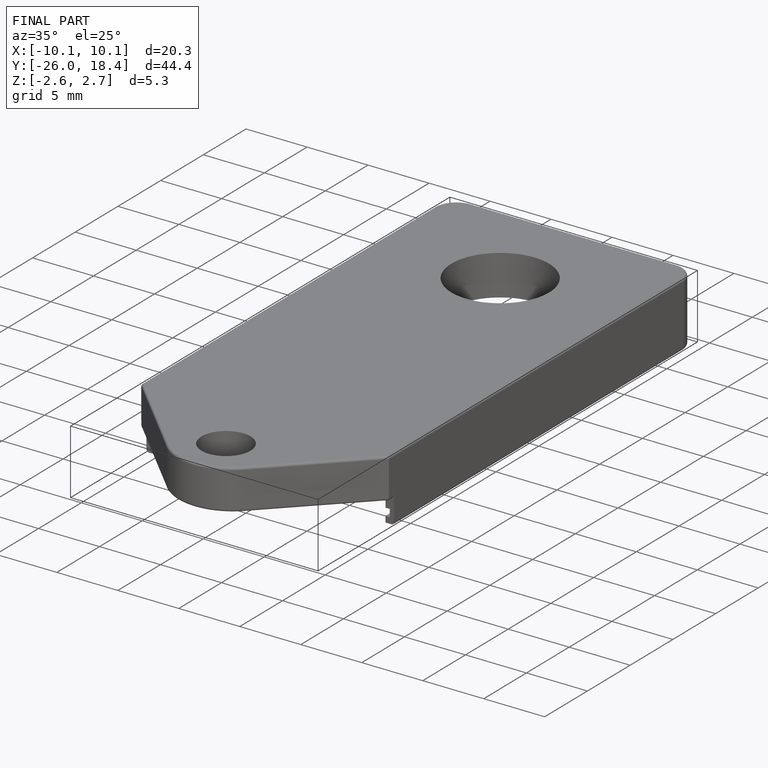
[diagram: finished part — iso view with bounding-box wireframe]
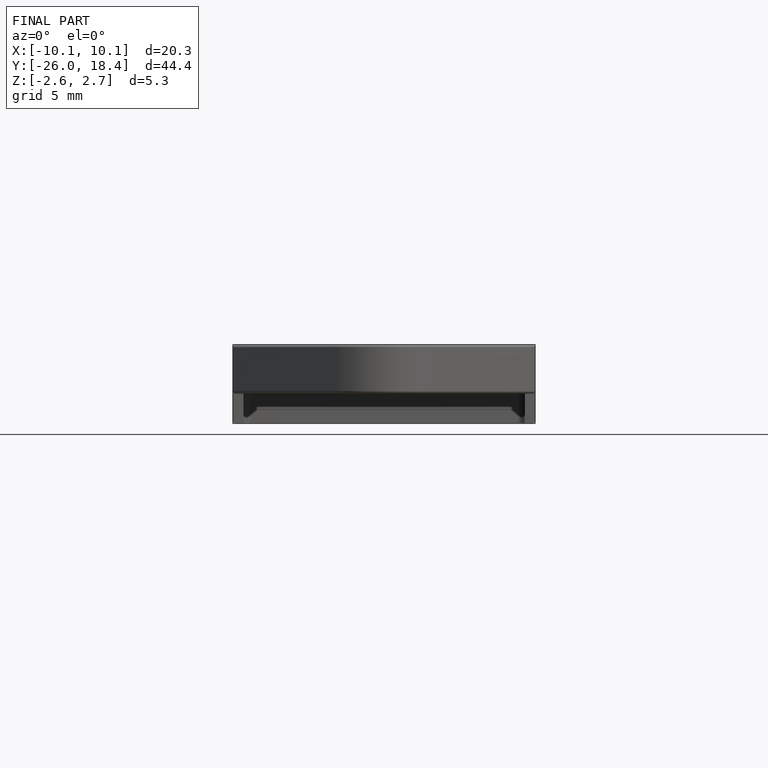
[diagram: finished part — front view with bounding-box wireframe]
